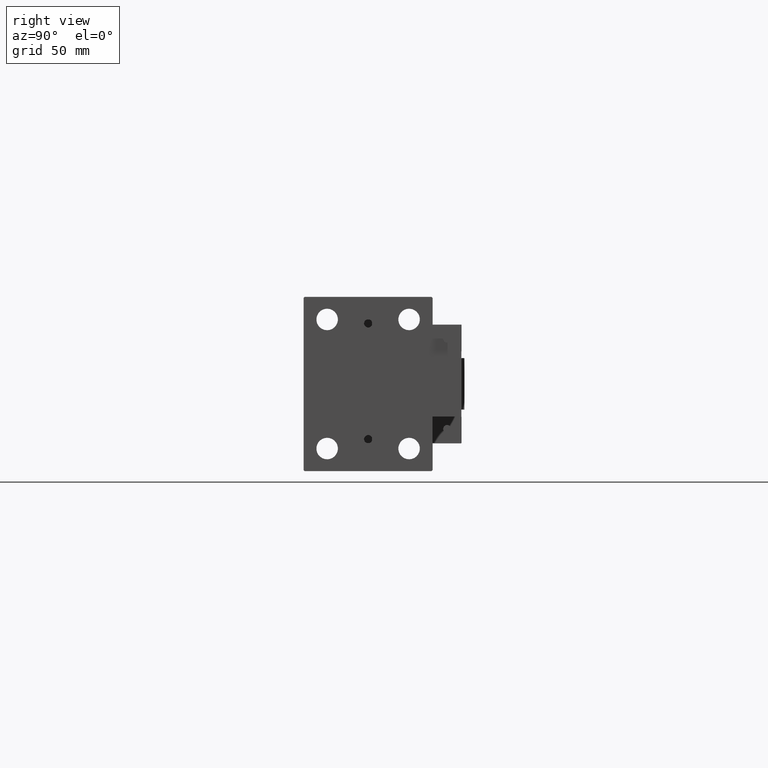
[diagram: clean part render]
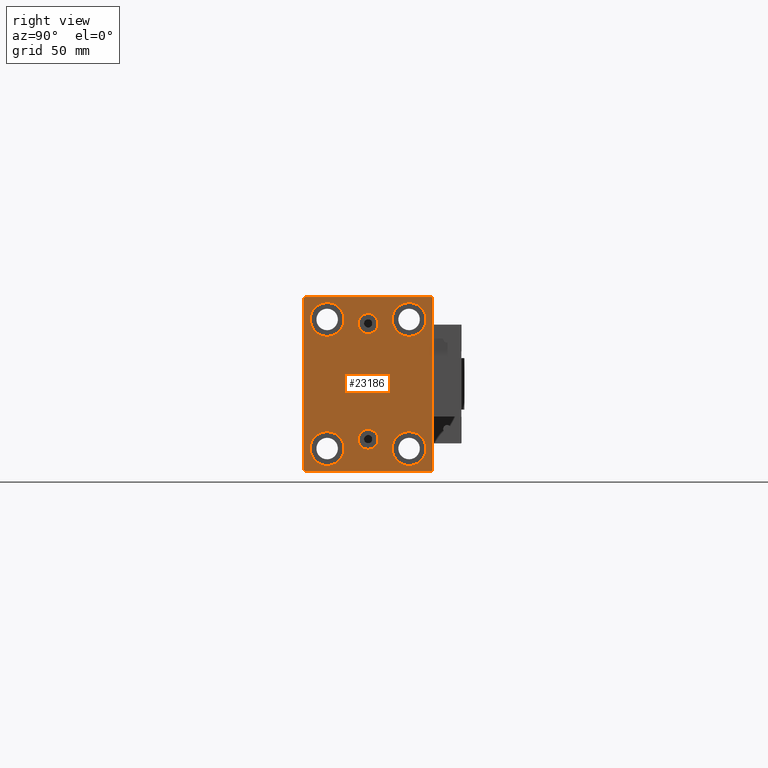
[diagram: same view with one face highlighted and labeled with its STEP entity id]
A machine part, right view. The second image highlights one B-rep face of the part: STEP entity #23186.
In plain terms, the highlighted planar face has unit normal (1, 0, 0).
Its self-contained STEP definition (entity closure, byte-faithful):
#80 = EDGE_CURVE ( 'NONE', #21747, #550, #1887, .T. ) ;
#364 = CARTESIAN_POINT ( 'NONE',  ( 263.0000000000000000, 31.50000000000001421, -41.99999999999997868 ) ) ;
#550 = VERTEX_POINT ( 'NONE', #39513 ) ;
#664 = CIRCLE ( 'NONE', #24913, 4.859999999999995879 ) ;
#668 = CARTESIAN_POINT ( 'NONE',  ( 263.0000000000000000, 31.50000000000000000, 42.50000000000000711 ) ) ;
#734 = DIRECTION ( 'NONE',  ( 1.000000000000000000, 0.000000000000000000, 0.000000000000000000 ) ) ;
#868 = VECTOR ( 'NONE', #12329, 1000.000000000000000 ) ;
#940 = CARTESIAN_POINT ( 'NONE',  ( 263.0000000000000000, -19.99999999999999645, 39.74999999999999289 ) ) ;
#1101 = DIRECTION ( 'NONE',  ( 0.000000000000000000, 0.000000000000000000, -1.000000000000000000 ) ) ;
#1123 = EDGE_CURVE ( 'NONE', #16607, #17586, #5457, .T. ) ;
#1849 = DIRECTION ( 'NONE',  ( 0.000000000000000000, 0.000000000000000000, -1.000000000000000000 ) ) ;
#1887 = LINE ( 'NONE', #10744, #15924 ) ;
#2034 = LINE ( 'NONE', #22272, #32517 ) ;
#2064 = EDGE_CURVE ( 'NONE', #26526, #19913, #25189, .T. ) ;
#2314 = DIRECTION ( 'NONE',  ( -0.000000000000000000, 0.7071067811865474617, -0.7071067811865474617 ) ) ;
#2358 = CARTESIAN_POINT ( 'NONE',  ( 263.0000000000000000, -30.99999999999997158, -42.50000000000000711 ) ) ;
#2835 = CARTESIAN_POINT ( 'NONE',  ( 263.0000000000000000, -20.00000000000000355, -23.24999999999999289 ) ) ;
#3248 = CARTESIAN_POINT ( 'NONE',  ( 263.0000000000000000, -30.99999999999997158, 42.49999999999999289 ) ) ;
#3439 = AXIS2_PLACEMENT_3D ( 'NONE', #40344, #44899, #1849 ) ;
#3530 = EDGE_CURVE ( 'NONE', #550, #19604, #39337, .T. ) ;
#3625 = AXIS2_PLACEMENT_3D ( 'NONE', #7970, #21966, #29566 ) ;
#3889 = VECTOR ( 'NONE', #33047, 1000.000000000000000 ) ;
#4298 = DIRECTION ( 'NONE',  ( 0.000000000000000000, 0.000000000000000000, -1.000000000000000000 ) ) ;
#4604 = CARTESIAN_POINT ( 'NONE',  ( 263.0000000000000000, 3.306546357697852550E-15, -26.99999999999998934 ) ) ;
#4911 = FACE_BOUND ( 'NONE', #20018, .T. ) ;
#5304 = CARTESIAN_POINT ( 'NONE',  ( 263.0000000000000000, 3.901724702083465828E-15, -22.13999999999999346 ) ) ;
#5457 = CIRCLE ( 'NONE', #33768, 8.249999999999992895 ) ;
#5679 = CARTESIAN_POINT ( 'NONE',  ( 263.0000000000000000, 19.99999999999999645, -31.49999999999999289 ) ) ;
#5765 = DIRECTION ( 'NONE',  ( -1.000000000000000000, -0.000000000000000000, -0.000000000000000000 ) ) ;
#6022 = CIRCLE ( 'NONE', #9227, 4.859999999999999432 ) ;
#6368 = ORIENTED_EDGE ( 'NONE', *, *, #80, .T. ) ;
#6523 = EDGE_CURVE ( 'NONE', #32813, #22543, #664, .T. ) ;
#7332 = VECTOR ( 'NONE', #46306, 1000.000000000000114 ) ;
#7557 = VERTEX_POINT ( 'NONE', #15447 ) ;
#7970 = CARTESIAN_POINT ( 'NONE',  ( 263.0000000000000000, -19.99999999999999645, 31.50000000000000000 ) ) ;
#8009 = CIRCLE ( 'NONE', #38735, 8.249999999999992895 ) ;
#8089 = DIRECTION ( 'NONE',  ( 0.000000000000000000, 1.000000000000000000, 0.000000000000000000 ) ) ;
#8172 = ORIENTED_EDGE ( 'NONE', *, *, #48619, .F. ) ;
#8912 = CIRCLE ( 'NONE', #23452, 8.250000000000000000 ) ;
#8986 = CIRCLE ( 'NONE', #44548, 4.859999999999995879 ) ;
#9227 = AXIS2_PLACEMENT_3D ( 'NONE', #39000, #734, #4298 ) ;
#9228 = DIRECTION ( 'NONE',  ( -1.000000000000000000, -0.000000000000000000, -0.000000000000000000 ) ) ;
#9376 = CARTESIAN_POINT ( 'NONE',  ( 263.0000000000000000, 30.99999999999991473, 42.50000000000000711 ) ) ;
#9923 = CARTESIAN_POINT ( 'NONE',  ( 263.0000000000000000, -36.74999999999998579, -36.74999999999998579 ) ) ;
#9992 = DIRECTION ( 'NONE',  ( 0.000000000000000000, -0.7071067811865474617, -0.7071067811865474617 ) ) ;
#10090 = CIRCLE ( 'NONE', #37619, 8.250000000000000000 ) ;
#10124 = DIRECTION ( 'NONE',  ( -1.000000000000000000, -0.000000000000000000, -0.000000000000000000 ) ) ;
#10744 = CARTESIAN_POINT ( 'NONE',  ( 263.0000000000000000, -36.74999999999997868, 36.74999999999997868 ) ) ;
#10878 = EDGE_CURVE ( 'NONE', #19604, #16344, #48904, .T. ) ;
#11444 = EDGE_LOOP ( 'NONE', ( #40300, #27566 ) ) ;
#11470 = CARTESIAN_POINT ( 'NONE',  ( 263.0000000000000000, -19.99999999999999645, 31.50000000000000000 ) ) ;
#11769 = FACE_BOUND ( 'NONE', #31615, .T. ) ;
#12329 = DIRECTION ( 'NONE',  ( 0.000000000000000000, -1.000000000000000000, -2.202823461557850341E-16 ) ) ;
#12726 = EDGE_CURVE ( 'NONE', #7557, #26526, #37972, .T. ) ;
#13199 = ORIENTED_EDGE ( 'NONE', *, *, #6523, .F. ) ;
#14127 = CARTESIAN_POINT ( 'NONE',  ( 263.0000000000000000, 3.306546357697852550E-15, -31.85999999999998522 ) ) ;
#14321 = ORIENTED_EDGE ( 'NONE', *, *, #10878, .T. ) ;
#15291 = EDGE_CURVE ( 'NONE', #19913, #47567, #2034, .T. ) ;
#15447 = CARTESIAN_POINT ( 'NONE',  ( 263.0000000000000000, 30.99999999999998579, -42.50000000000000711 ) ) ;
#15665 = VERTEX_POINT ( 'NONE', #30310 ) ;
#15710 = EDGE_CURVE ( 'NONE', #17586, #16607, #20361, .T. ) ;
#15805 = DIRECTION ( 'NONE',  ( 1.000000000000000000, 0.000000000000000000, 0.000000000000000000 ) ) ;
#15924 = VECTOR ( 'NONE', #9992, 1000.000000000000114 ) ;
#16303 = FACE_BOUND ( 'NONE', #23981, .T. ) ;
#16344 = VERTEX_POINT ( 'NONE', #2358 ) ;
#16440 = EDGE_CURVE ( 'NONE', #22543, #32813, #8986, .T. ) ;
#16607 = VERTEX_POINT ( 'NONE', #40044 ) ;
#17240 = DIRECTION ( 'NONE',  ( -1.000000000000000000, -0.000000000000000000, -0.000000000000000000 ) ) ;
#17586 = VERTEX_POINT ( 'NONE', #25295 ) ;
#17587 = ORIENTED_EDGE ( 'NONE', *, *, #16440, .F. ) ;
#17799 = CARTESIAN_POINT ( 'NONE',  ( 263.0000000000000000, 3.306546357697852550E-15, -26.99999999999998934 ) ) ;
#18759 = ORIENTED_EDGE ( 'NONE', *, *, #15291, .T. ) ;
#18967 = CIRCLE ( 'NONE', #3625, 8.249999999999992895 ) ;
#19604 = VERTEX_POINT ( 'NONE', #40795 ) ;
#19913 = VERTEX_POINT ( 'NONE', #33388 ) ;
#20018 = EDGE_LOOP ( 'NONE', ( #38631, #49051 ) ) ;
#20040 = DIRECTION ( 'NONE',  ( 0.000000000000000000, 0.000000000000000000, 1.000000000000000000 ) ) ;
#20331 = CARTESIAN_POINT ( 'NONE',  ( 263.0000000000000000, -31.50000000000000000, 42.49999999999999289 ) ) ;
#20361 = CIRCLE ( 'NONE', #28461, 8.249999999999992895 ) ;
#20686 = ORIENTED_EDGE ( 'NONE', *, *, #43332, .T. ) ;
#20761 = VECTOR ( 'NONE', #39588, 1000.000000000000000 ) ;
#21747 = VERTEX_POINT ( 'NONE', #3248 ) ;
#21877 = VERTEX_POINT ( 'NONE', #940 ) ;
#21966 = DIRECTION ( 'NONE',  ( -1.000000000000000000, -0.000000000000000000, -0.000000000000000000 ) ) ;
#22190 = CARTESIAN_POINT ( 'NONE',  ( 263.0000000000000000, -20.00000000000000355, -39.74999999999999289 ) ) ;
#22272 = CARTESIAN_POINT ( 'NONE',  ( 263.0000000000000000, 36.74999999999910472, 36.75000000000114397 ) ) ;
#22543 = VERTEX_POINT ( 'NONE', #14127 ) ;
#22593 = AXIS2_PLACEMENT_3D ( 'NONE', #35969, #23540, #46843 ) ;
#23186 = ADVANCED_FACE ( 'NONE', ( #27186, #16303, #11769, #39111, #4911, #28190, #34811 ), #43151, .T. ) ;
#23452 = AXIS2_PLACEMENT_3D ( 'NONE', #44823, #10124, #33924 ) ;
#23513 = CARTESIAN_POINT ( 'NONE',  ( 263.0000000000000000, -31.50000000000000000, -42.50000000000000711 ) ) ;
#23540 = DIRECTION ( 'NONE',  ( -1.000000000000000000, -0.000000000000000000, -0.000000000000000000 ) ) ;
#23698 = EDGE_LOOP ( 'NONE', ( #29074, #8172 ) ) ;
#23981 = EDGE_LOOP ( 'NONE', ( #17587, #13199 ) ) ;
#24488 = CARTESIAN_POINT ( 'NONE',  ( 263.0000000000000000, 20.00000000000000355, 31.50000000000000000 ) ) ;
#24831 = CARTESIAN_POINT ( 'NONE',  ( 263.0000000000000000, 19.99999999999999645, -31.49999999999999289 ) ) ;
#24913 = AXIS2_PLACEMENT_3D ( 'NONE', #17799, #33259, #37821 ) ;
#24917 = CARTESIAN_POINT ( 'NONE',  ( 263.0000000000000000, -2.976515330312223011E-15, 34.36000000000000654 ) ) ;
#25189 = LINE ( 'NONE', #32555, #3889 ) ;
#25267 = CIRCLE ( 'NONE', #3439, 4.859999999999999432 ) ;
#25295 = CARTESIAN_POINT ( 'NONE',  ( 263.0000000000000000, 20.00000000000000355, 39.74999999999999289 ) ) ;
#25338 = DIRECTION ( 'NONE',  ( 0.000000000000000000, 0.000000000000000000, 1.000000000000000000 ) ) ;
#26526 = VERTEX_POINT ( 'NONE', #364 ) ;
#26584 = EDGE_CURVE ( 'NONE', #45735, #21877, #18967, .T. ) ;
#26644 = DIRECTION ( 'NONE',  ( -1.000000000000000000, -0.000000000000000000, -0.000000000000000000 ) ) ;
#27186 = FACE_BOUND ( 'NONE', #23698, .T. ) ;
#27439 = CARTESIAN_POINT ( 'NONE',  ( 263.0000000000000000, 0.000000000000000000, 0.000000000000000000 ) ) ;
#27546 = AXIS2_PLACEMENT_3D ( 'NONE', #24831, #17240, #25338 ) ;
#27566 = ORIENTED_EDGE ( 'NONE', *, *, #35912, .T. ) ;
#27642 = DIRECTION ( 'NONE',  ( 1.000000000000000000, 0.000000000000000000, -0.000000000000000000 ) ) ;
#27903 = EDGE_LOOP ( 'NONE', ( #34672, #45568 ) ) ;
#28190 = FACE_BOUND ( 'NONE', #11444, .T. ) ;
#28461 = AXIS2_PLACEMENT_3D ( 'NONE', #38426, #46016, #42462 ) ;
#29032 = VERTEX_POINT ( 'NONE', #45886 ) ;
#29074 = ORIENTED_EDGE ( 'NONE', *, *, #41511, .F. ) ;
#29566 = DIRECTION ( 'NONE',  ( 0.000000000000000000, 0.000000000000000000, 1.000000000000000000 ) ) ;
#30029 = CARTESIAN_POINT ( 'NONE',  ( 263.0000000000000000, -19.99999999999999645, 23.25000000000000355 ) ) ;
#30310 = CARTESIAN_POINT ( 'NONE',  ( 263.0000000000000000, 19.99999999999999645, -23.24999999999999289 ) ) ;
#31615 = EDGE_LOOP ( 'NONE', ( #39074, #33671 ) ) ;
#32512 = EDGE_CURVE ( 'NONE', #21877, #45735, #8009, .T. ) ;
#32517 = VECTOR ( 'NONE', #33686, 1000.000000000000000 ) ;
#32555 = CARTESIAN_POINT ( 'NONE',  ( 263.0000000000000000, 31.50000000000001421, -42.50000000000000711 ) ) ;
#32813 = VERTEX_POINT ( 'NONE', #5304 ) ;
#32969 = ORIENTED_EDGE ( 'NONE', *, *, #36585, .T. ) ;
#33047 = DIRECTION ( 'NONE',  ( 0.000000000000000000, -1.632680918566406300E-16, 1.000000000000000000 ) ) ;
#33259 = DIRECTION ( 'NONE',  ( 1.000000000000000000, 0.000000000000000000, -0.000000000000000000 ) ) ;
#33388 = CARTESIAN_POINT ( 'NONE',  ( 263.0000000000000000, 31.50000000000000000, 41.99999999999995737 ) ) ;
#33577 = CARTESIAN_POINT ( 'NONE',  ( 263.0000000000000000, 19.99999999999999645, -39.74999999999999289 ) ) ;
#33671 = ORIENTED_EDGE ( 'NONE', *, *, #37009, .T. ) ;
#33686 = DIRECTION ( 'NONE',  ( -0.000000000000000000, -0.7071067811865671127, 0.7071067811865279218 ) ) ;
#33768 = AXIS2_PLACEMENT_3D ( 'NONE', #24488, #5765, #36163 ) ;
#33825 = EDGE_CURVE ( 'NONE', #35209, #47365, #37985, .T. ) ;
#33924 = DIRECTION ( 'NONE',  ( 0.000000000000000000, 0.000000000000000000, 1.000000000000000000 ) ) ;
#34261 = VECTOR ( 'NONE', #8089, 1000.000000000000000 ) ;
#34605 = VERTEX_POINT ( 'NONE', #24917 ) ;
#34672 = ORIENTED_EDGE ( 'NONE', *, *, #26584, .T. ) ;
#34682 = LINE ( 'NONE', #23513, #34261 ) ;
#34811 = FACE_OUTER_BOUND ( 'NONE', #45335, .T. ) ;
#35209 = VERTEX_POINT ( 'NONE', #22190 ) ;
#35385 = LINE ( 'NONE', #668, #868 ) ;
#35912 = EDGE_CURVE ( 'NONE', #47365, #35209, #8912, .T. ) ;
#35969 = CARTESIAN_POINT ( 'NONE',  ( 263.0000000000000000, -20.00000000000000355, -31.49999999999999289 ) ) ;
#36163 = DIRECTION ( 'NONE',  ( 0.000000000000000000, 0.000000000000000000, 1.000000000000000000 ) ) ;
#36585 = EDGE_CURVE ( 'NONE', #47567, #21747, #35385, .T. ) ;
#37009 = EDGE_CURVE ( 'NONE', #15665, #48343, #48589, .T. ) ;
#37619 = AXIS2_PLACEMENT_3D ( 'NONE', #5679, #9228, #47717 ) ;
#37821 = DIRECTION ( 'NONE',  ( 0.000000000000000000, 0.000000000000000000, 1.000000000000000000 ) ) ;
#37863 = ORIENTED_EDGE ( 'NONE', *, *, #2064, .T. ) ;
#37972 = LINE ( 'NONE', #49840, #7332 ) ;
#37985 = CIRCLE ( 'NONE', #22593, 8.250000000000000000 ) ;
#38418 = ORIENTED_EDGE ( 'NONE', *, *, #3530, .T. ) ;
#38426 = CARTESIAN_POINT ( 'NONE',  ( 263.0000000000000000, 20.00000000000000355, 31.50000000000000000 ) ) ;
#38631 = ORIENTED_EDGE ( 'NONE', *, *, #1123, .T. ) ;
#38735 = AXIS2_PLACEMENT_3D ( 'NONE', #11470, #26644, #49937 ) ;
#39000 = CARTESIAN_POINT ( 'NONE',  ( 263.0000000000000000, -3.571693674697836683E-15, 29.50000000000001066 ) ) ;
#39074 = ORIENTED_EDGE ( 'NONE', *, *, #49645, .T. ) ;
#39111 = FACE_BOUND ( 'NONE', #27903, .T. ) ;
#39337 = LINE ( 'NONE', #20331, #20761 ) ;
#39513 = CARTESIAN_POINT ( 'NONE',  ( 263.0000000000000000, -31.50000000000000000, 41.99999999999996447 ) ) ;
#39588 = DIRECTION ( 'NONE',  ( 0.000000000000000000, 0.000000000000000000, -1.000000000000000000 ) ) ;
#40044 = CARTESIAN_POINT ( 'NONE',  ( 263.0000000000000000, 20.00000000000000355, 23.25000000000000355 ) ) ;
#40300 = ORIENTED_EDGE ( 'NONE', *, *, #33825, .T. ) ;
#40344 = CARTESIAN_POINT ( 'NONE',  ( 263.0000000000000000, -3.571693674697836683E-15, 29.50000000000001066 ) ) ;
#40434 = VECTOR ( 'NONE', #2314, 1000.000000000000114 ) ;
#40795 = CARTESIAN_POINT ( 'NONE',  ( 263.0000000000000000, -31.50000000000000000, -41.99999999999997868 ) ) ;
#41511 = EDGE_CURVE ( 'NONE', #29032, #34605, #25267, .T. ) ;
#42462 = DIRECTION ( 'NONE',  ( 0.000000000000000000, 0.000000000000000000, 1.000000000000000000 ) ) ;
#43151 = PLANE ( 'NONE',  #48812 ) ;
#43332 = EDGE_CURVE ( 'NONE', #16344, #7557, #34682, .T. ) ;
#44548 = AXIS2_PLACEMENT_3D ( 'NONE', #4604, #27642, #20040 ) ;
#44823 = CARTESIAN_POINT ( 'NONE',  ( 263.0000000000000000, -20.00000000000000355, -31.49999999999999289 ) ) ;
#44899 = DIRECTION ( 'NONE',  ( 1.000000000000000000, 0.000000000000000000, 0.000000000000000000 ) ) ;
#45335 = EDGE_LOOP ( 'NONE', ( #32969, #6368, #38418, #14321, #20686, #49037, #37863, #18759 ) ) ;
#45568 = ORIENTED_EDGE ( 'NONE', *, *, #32512, .T. ) ;
#45735 = VERTEX_POINT ( 'NONE', #30029 ) ;
#45886 = CARTESIAN_POINT ( 'NONE',  ( 263.0000000000000000, -3.571693674697836683E-15, 24.64000000000001123 ) ) ;
#46016 = DIRECTION ( 'NONE',  ( -1.000000000000000000, -0.000000000000000000, -0.000000000000000000 ) ) ;
#46306 = DIRECTION ( 'NONE',  ( -0.000000000000000000, 0.7071067811865474617, 0.7071067811865474617 ) ) ;
#46843 = DIRECTION ( 'NONE',  ( 0.000000000000000000, 0.000000000000000000, 1.000000000000000000 ) ) ;
#47365 = VERTEX_POINT ( 'NONE', #2835 ) ;
#47567 = VERTEX_POINT ( 'NONE', #9376 ) ;
#47717 = DIRECTION ( 'NONE',  ( 0.000000000000000000, 0.000000000000000000, 1.000000000000000000 ) ) ;
#48343 = VERTEX_POINT ( 'NONE', #33577 ) ;
#48589 = CIRCLE ( 'NONE', #27546, 8.250000000000000000 ) ;
#48619 = EDGE_CURVE ( 'NONE', #34605, #29032, #6022, .T. ) ;
#48812 = AXIS2_PLACEMENT_3D ( 'NONE', #27439, #15805, #1101 ) ;
#48904 = LINE ( 'NONE', #9923, #40434 ) ;
#49037 = ORIENTED_EDGE ( 'NONE', *, *, #12726, .T. ) ;
#49051 = ORIENTED_EDGE ( 'NONE', *, *, #15710, .T. ) ;
#49645 = EDGE_CURVE ( 'NONE', #48343, #15665, #10090, .T. ) ;
#49840 = CARTESIAN_POINT ( 'NONE',  ( 263.0000000000000000, 36.74999999999999289, -36.74999999999999289 ) ) ;
#49937 = DIRECTION ( 'NONE',  ( 0.000000000000000000, 0.000000000000000000, 1.000000000000000000 ) ) ;